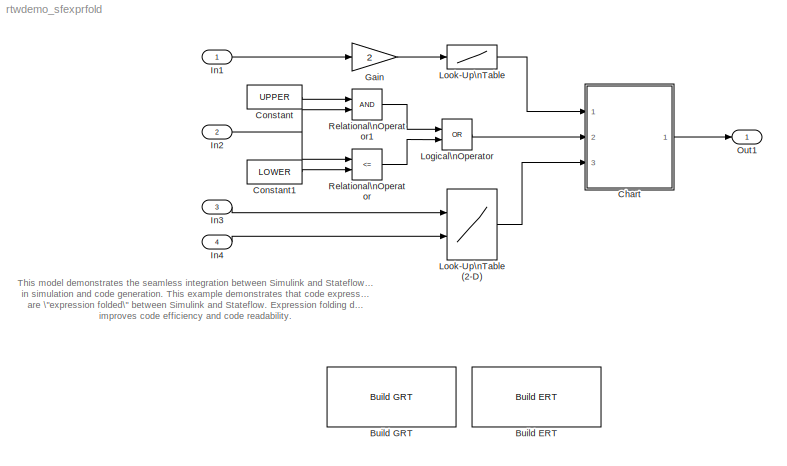
MODEL rtwdemo_sfexprfold
KIND model
CONFIG PreLoadFcn = rtwdemo_exprfolding_data
BLOCK [Reference] Build ERT  REF=rtwdemowidgets/Build ERT
  Ports = []
  ShowPortLabels = on
  SourceBlock = rtwdemowidgets/Build ERT
  attrib_overrides = {}
BLOCK [Reference] Build GRT  REF=rtwdemowidgets/Build GRT
  Ports = []
  ShowPortLabels = on
  SourceBlock = rtwdemowidgets/Build GRT
  attrib_overrides = {}
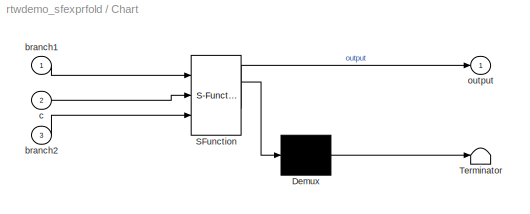
BLOCK [SubSystem] Chart
  MaskDescription = Stateflow diagram
  MaskDisplay = plot(sf('Private','sfblk','xIcon'),sf('Private','sfblk','yIcon'));text(0.5,0,sf('Private', 'sfblk', 'tIcon'),'HorizontalAl','Center','VerticalAl','Bottom');
  MaskIconFrame = off
  MaskIconOpaque = off
  MaskIconRotate = none
  MaskIconUnits = autoscale
  MaskSelfModifiable = on
  MaskType = Stateflow
  MinAlgLoopOccurrences = off
  Ports = [3, 1]
  PropExecContextAcrossSSBoundary = on
  RTWSystemCode = Auto
  TreatAsAtomicUnit = off
BLOCK [Demux] Chart/ Demux 
  Outputs = 1
  Ports = [1, 1]
BLOCK [S-Function] Chart/ SFunction 
  FunctionName = sf_sfun
  PortCounts = [3 2]
  Ports = [3, 2]
  Tag = Stateflow S-Function rtwdemo_sfexprfold 1
BLOCK [Terminator] Chart/ Terminator 
BLOCK [Inport] Chart/branch1
  IconDisplay = Port number
  LatchInput = off
  Port = 1
BLOCK [Inport] Chart/branch2
  IconDisplay = Port number
  LatchInput = off
  Port = 3
BLOCK [Inport] Chart/c
  IconDisplay = Port number
  LatchInput = off
  Port = 2
BLOCK [Outport] Chart/output
  BusOutputAsStruct = off
  IconDisplay = Port number
BLOCK [Constant] Constant
  Value = UPPER
BLOCK [Constant] Constant1
  Value = LOWER
BLOCK [Gain] Gain
  Gain = 2
BLOCK [Inport] In1
  IconDisplay = Port number
  LatchInput = off
  Port = 1
  PortDimensions = 1
BLOCK [Inport] In2
  IconDisplay = Port number
  LatchInput = off
  Port = 2
  PortDimensions = 1
BLOCK [Inport] In3
  IconDisplay = Port number
  LatchInput = off
  Port = 3
  PortDimensions = 1
BLOCK [Inport] In4
  IconDisplay = Port number
  LatchInput = off
  Port = 4
  PortDimensions = 1
BLOCK [Logic] Logical\nOperator
  Operator = OR
  Ports = [2, 1]
BLOCK [Lookup] Look-Up\nTable
  DialogController = Simulink.DDGSource
  InputValues = T1Break
  OutputValues = T1Data
BLOCK [Lookup2D] Look-Up\nTable (2-D)
  ColumnIndex = T2Break
  DialogController = Simulink.DDGSource
  OutScaling = 2^-10
  OutputValues = T2Data
  RowIndex = T2Break
  SaturateOnIntegerOverflow = off
BLOCK [Outport] Out1
  BusOutputAsStruct = off
  IconDisplay = Port number
BLOCK [RelationalOperator] Relational\nOperator
  Operator = <=
BLOCK [RelationalOperator] Relational\nOperator1
ANNOTATION (root): This model demonstrates the seamless integration between Simulink and Stateflow both\nin simulation and code generation. This example demonstrates that code expressions\nare \"expression folded\" between Simulink and Stateflow. Expression folding dramatically\nimproves code efficiency and code readability.
LINE Chart/ Demux :1 -> Chart/ Terminator :1
LINE Chart/ SFunction :1 -> Chart/ Demux :1
LINE Chart/ SFunction :2 -> Chart/output:1
LINE Chart/branch1:1 -> Chart/ SFunction :1
LINE Chart/branch2:1 -> Chart/ SFunction :3
LINE Chart/c:1 -> Chart/ SFunction :2
LINE Chart:1 -> Out1:1
LINE Constant1:1 -> Relational\nOperator:2
LINE Constant:1 -> Relational\nOperator1:1
LINE Gain:1 -> Look-Up\nTable:1
LINE In1:1 -> Gain:1
NET In2:1 -> Relational\nOperator1:2, Relational\nOperator:1
LINE In3:1 -> Look-Up\nTable (2-D):1
LINE In4:1 -> Look-Up\nTable (2-D):2
LINE Logical\nOperator:1 -> Chart:2
LINE Look-Up\nTable (2-D):1 -> Chart:3
LINE Look-Up\nTable:1 -> Chart:1
LINE Relational\nOperator1:1 -> Logical\nOperator:1
LINE Relational\nOperator:1 -> Logical\nOperator:2
note: NET lines group one-source signal fan-out (src -> all destinations, sorted); 1:1 wires keep LINE
CHART Chart states=1 transitions=3
  STATE_LABEL 'This chart is acting as an if-else condition.\\nUsing a Simulink switch or if-action block\\nresults in virtually identical code.'
